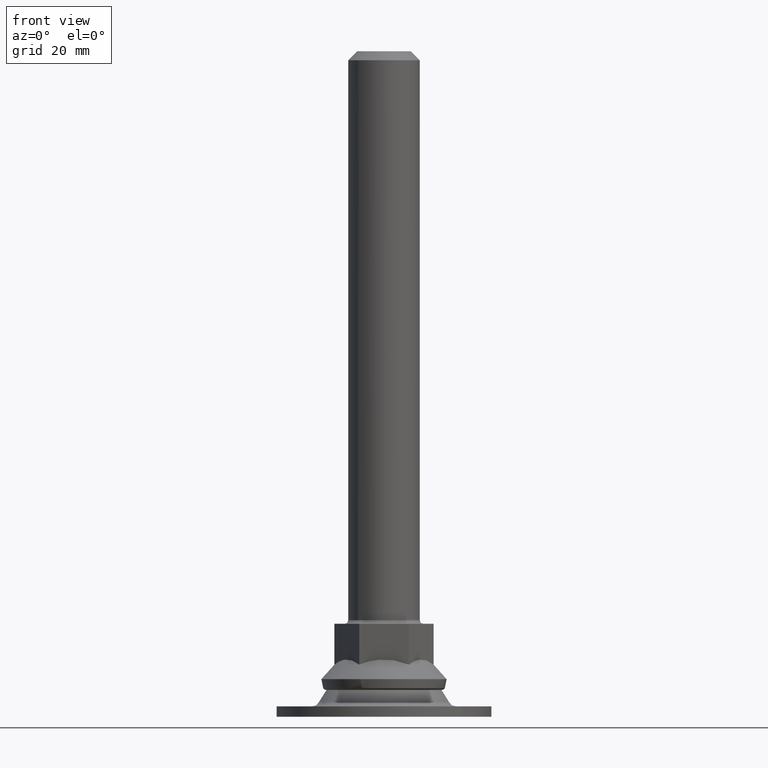
[diagram: clean part render]
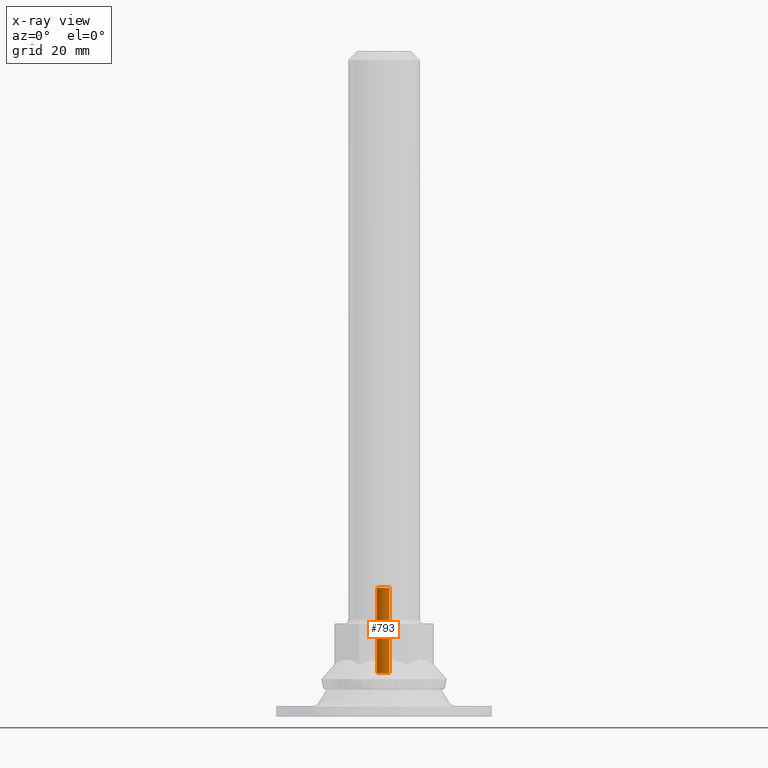
[diagram: x-ray — body ghosted, one internal face saturated and labeled with its STEP entity id]
A machine part, front view, then the same camera in x-ray: the body is ghosted and one INTERNAL B-rep face — a face not visible from any outside direction — is saturated and labeled: STEP entity #793.
In plain terms, the highlighted face is a freeform B-spline surface patch.
Its self-contained STEP definition (entity closure, byte-faithful):
#601=CARTESIAN_POINT('',(1.450747718110333,-1.376708650852344,36.0));
#602=VERTEX_POINT('',#601);
#624=CARTESIAN_POINT('',(-1.450747718110335,1.376708650852346,36.0));
#625=VERTEX_POINT('',#624);
#634=CARTESIAN_POINT('',(-2.0,0.0,36.0));
#635=VERTEX_POINT('',#634);
#636=CARTESIAN_POINT('',(-2.0,0.0,36.0));
#637=CARTESIAN_POINT('',(-2.000298968588286,0.268926480092578,35.999999999999929));
#638=CARTESIAN_POINT('',(-1.896265625959090,0.774787140788598,36.000000000000107));
#639=CARTESIAN_POINT('',(-1.614219622934851,1.204712539507125,36.000000000000007));
#640=CARTESIAN_POINT('',(-1.450747718110335,1.376708650852346,36.0));
#641=B_SPLINE_CURVE_WITH_KNOTS('',3,(#636,#637,#638,#639,#640),.UNSPECIFIED.,.F.,.U.,(4,1,4),(0.000000094451160,0.806659925216381,1.518471984198970),.UNSPECIFIED.);
#642=EDGE_CURVE('',#635,#625,#641,.T.);
#644=CARTESIAN_POINT('',(-0.000004355033411,-1.999999999995259,36.0));
#645=VERTEX_POINT('',#644);
#646=CARTESIAN_POINT('',(-0.000004355033411,-1.999999999995259,36.0));
#647=CARTESIAN_POINT('',(-0.179981639129318,-2.000042072126695,35.999999999999993));
#648=CARTESIAN_POINT('',(-0.589098547986478,-1.944496964655899,36.000000000000021));
#649=CARTESIAN_POINT('',(-1.084356351401544,-1.710257127212910,35.999999999999993));
#650=CARTESIAN_POINT('',(-1.532637917287180,-1.323610375931752,36.000000000000092));
#651=CARTESIAN_POINT('',(-1.892415199733199,-0.785208514336417,36.000000000000021));
#652=CARTESIAN_POINT('',(-2.000348298294387,-0.278204760293635,35.999999999999929));
#653=CARTESIAN_POINT('',(-2.0,0.0,36.0));
#654=B_SPLINE_CURVE_WITH_KNOTS('',3,(#646,#647,#648,#649,#650,#651,#652,#653),.UNSPECIFIED.,.F.,.U.,(4,1,1,1,1,4),(0.000000438016426,0.539965879701650,1.227256701585764,1.619859132948871,2.307159220789917,3.141669034100417),.UNSPECIFIED.);
#655=EDGE_CURVE('',#645,#635,#654,.T.);
#657=CARTESIAN_POINT('',(1.450747718110333,-1.376708650852344,36.0));
#658=CARTESIAN_POINT('',(1.276291644816699,-1.560843889778429,35.999999999999993));
#659=CARTESIAN_POINT('',(0.828162779578654,-1.881208023679100,36.000000000000028));
#660=CARTESIAN_POINT('',(0.287483765944439,-2.000415344265493,35.999999999999993));
#661=CARTESIAN_POINT('',(-0.000004355033411,-1.999999999995259,36.0));
#662=B_SPLINE_CURVE_WITH_KNOTS('',3,(#657,#658,#659,#660,#661),.UNSPECIFIED.,.F.,.U.,(4,1,4),(0.000000103399793,0.760902902093713,1.623203267802599),.UNSPECIFIED.);
#663=EDGE_CURVE('',#602,#645,#662,.T.);
#686=CARTESIAN_POINT('',(-1.450747999198550,1.376708446510026,12.176835638589891));
#687=VERTEX_POINT('',#686);
#688=CARTESIAN_POINT('',(-1.450747718110335,1.376708650852346,36.0));
#689=CARTESIAN_POINT('',(-1.450747999198550,1.376708446510026,12.176835638589891));
#690=QUASI_UNIFORM_CURVE('',1,(#688,#689),.UNSPECIFIED.,.F.,.U.);
#691=EDGE_CURVE('',#625,#687,#690,.T.);
#696=CARTESIAN_POINT('',(1.450747999198548,-1.376708446510024,12.176835638589891));
#697=VERTEX_POINT('',#696);
#698=CARTESIAN_POINT('',(1.450747718110333,-1.376708650852344,36.0));
#699=CARTESIAN_POINT('',(1.450747999198548,-1.376708446510024,12.176835638589891));
#700=QUASI_UNIFORM_CURVE('',1,(#698,#699),.UNSPECIFIED.,.F.,.U.);
#701=EDGE_CURVE('',#602,#697,#700,.T.);
#737=CARTESIAN_POINT('',(1.450748742024575,-1.376709151387508,36.595579117749843));
#738=CARTESIAN_POINT('',(0.074039590637067,-2.827457893412082,36.595579117749836));
#739=CARTESIAN_POINT('',(-1.376709151387508,-1.450748742024575,36.595579117749843));
#740=CARTESIAN_POINT('',(-2.827457893412082,-0.074039590637067,36.595579117749836));
#741=CARTESIAN_POINT('',(-1.450748742024575,1.376709151387508,36.595579117749843));
#742=CARTESIAN_POINT('',(1.450748742024575,-1.376709151387508,11.566366694312920));
#743=CARTESIAN_POINT('',(0.074039590637067,-2.827457893412082,11.566366694312919));
#744=CARTESIAN_POINT('',(-1.376709151387508,-1.450748742024575,11.566366694312920));
#745=CARTESIAN_POINT('',(-2.827457893412082,-0.074039590637067,11.566366694312917));
#746=CARTESIAN_POINT('',(-1.450748742024575,1.376709151387508,11.566366694312920));
#754=(BOUNDED_SURFACE()B_SPLINE_SURFACE(2,1,((#737,#742),(#738,#743),(#739,#744),(#740,#745),(#741,#746)),.UNSPECIFIED.,.F.,.F.,.U.)B_SPLINE_SURFACE_WITH_KNOTS((3,2,3),(2,2),(0.0,3.313708498984759,6.627416997969519),(0.0,25.029212423436920),.UNSPECIFIED.)GEOMETRIC_REPRESENTATION_ITEM()RATIONAL_B_SPLINE_SURFACE(((1.0,1.0),(0.707106781186548,0.707106781186548),(1.0,1.0),(0.707106781186548,0.707106781186548),(1.0,1.0)))REPRESENTATION_ITEM('')SURFACE());
#755=ORIENTED_EDGE('',*,*,#691,.T.);
#756=CARTESIAN_POINT('',(-2.0,0.0,12.176835290006499));
#757=VERTEX_POINT('',#756);
#758=CARTESIAN_POINT('',(-2.0,0.0,12.176835290006499));
#759=CARTESIAN_POINT('',(-2.000379361062517,0.284767026114768,12.176835362109680));
#760=CARTESIAN_POINT('',(-1.889978635770861,0.790539492077732,12.176835490171550));
#761=CARTESIAN_POINT('',(-1.603259713358066,1.216146943741900,12.176835597935630));
#762=CARTESIAN_POINT('',(-1.450747999198550,1.376708446510026,12.176835638589891));
#763=B_SPLINE_CURVE_WITH_KNOTS('',3,(#758,#759,#760,#761,#762),.UNSPECIFIED.,.F.,.U.,(4,1,4),(0.000000094453752,0.854121721736992,1.518471666466637),.UNSPECIFIED.);
#764=EDGE_CURVE('',#757,#687,#763,.T.);
#765=ORIENTED_EDGE('',*,*,#764,.F.);
#766=CARTESIAN_POINT('',(-0.000004355033417,-1.999999999995259,12.176835290006499));
#767=VERTEX_POINT('',#766);
#768=CARTESIAN_POINT('',(-0.000004355033417,-1.999999999995259,12.176835290006499));
#769=CARTESIAN_POINT('',(-0.278229419432037,-2.000369898692324,12.176835290006480));
#770=CARTESIAN_POINT('',(-0.752427380992507,-1.899315185544208,12.176835290006530));
#771=CARTESIAN_POINT('',(-1.353384673567265,-1.518811840661156,12.176835290006510));
#772=CARTESIAN_POINT('',(-1.711521111675739,-1.082412132219533,12.176835290006460));
#773=CARTESIAN_POINT('',(-1.944629700035309,-0.556245974777093,12.176835290006560));
#774=CARTESIAN_POINT('',(-2.000113693703759,-0.212725309656961,12.176835290006499));
#775=CARTESIAN_POINT('',(-2.0,0.0,12.176835290006499));
#776=B_SPLINE_CURVE_WITH_KNOTS('',3,(#768,#769,#770,#771,#772,#773,#774,#775),.UNSPECIFIED.,.F.,.U.,(4,1,1,1,1,4),(0.000000438016196,0.834510248486068,1.423589654786353,2.110800178788848,2.503524247562260,3.141669034100417),.UNSPECIFIED.);
#777=EDGE_CURVE('',#767,#757,#776,.T.);
#778=ORIENTED_EDGE('',*,*,#777,.F.);
#779=CARTESIAN_POINT('',(1.450747999198548,-1.376708446510024,12.176835638589891));
#780=CARTESIAN_POINT('',(1.299516777243456,-1.536214556067666,12.176835602252440));
#781=CARTESIAN_POINT('',(0.861719304908667,-1.866634039090721,12.176835497059621));
#782=CARTESIAN_POINT('',(0.321391962082177,-2.000664774746544,12.176835367230900));
#783=CARTESIAN_POINT('',(-0.000004355033417,-1.999999999995259,12.176835290006499));
#784=B_SPLINE_CURVE_WITH_KNOTS('',3,(#779,#780,#781,#782,#783),.UNSPECIFIED.,.F.,.U.,(4,1,4),(0.000000103396604,0.659431726911924,1.623203635203698),.UNSPECIFIED.);
#785=EDGE_CURVE('',#697,#767,#784,.T.);
#786=ORIENTED_EDGE('',*,*,#785,.F.);
#787=ORIENTED_EDGE('',*,*,#701,.F.);
#788=ORIENTED_EDGE('',*,*,#663,.T.);
#789=ORIENTED_EDGE('',*,*,#655,.T.);
#790=ORIENTED_EDGE('',*,*,#642,.T.);
#791=EDGE_LOOP('',(#755,#765,#778,#786,#787,#788,#789,#790));
#792=FACE_OUTER_BOUND('',#791,.T.);
#793=ADVANCED_FACE('',(#792),#754,.T.);